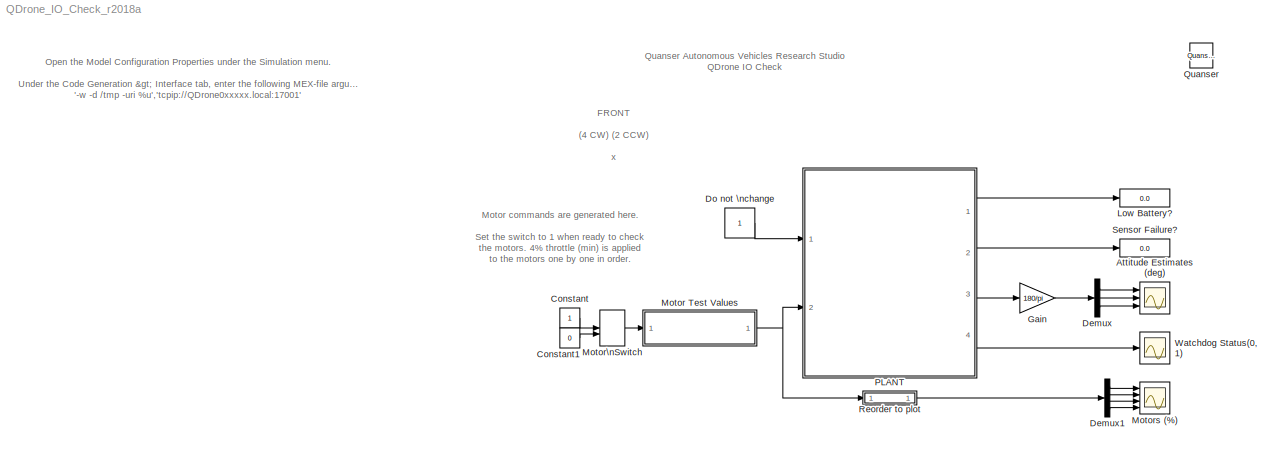
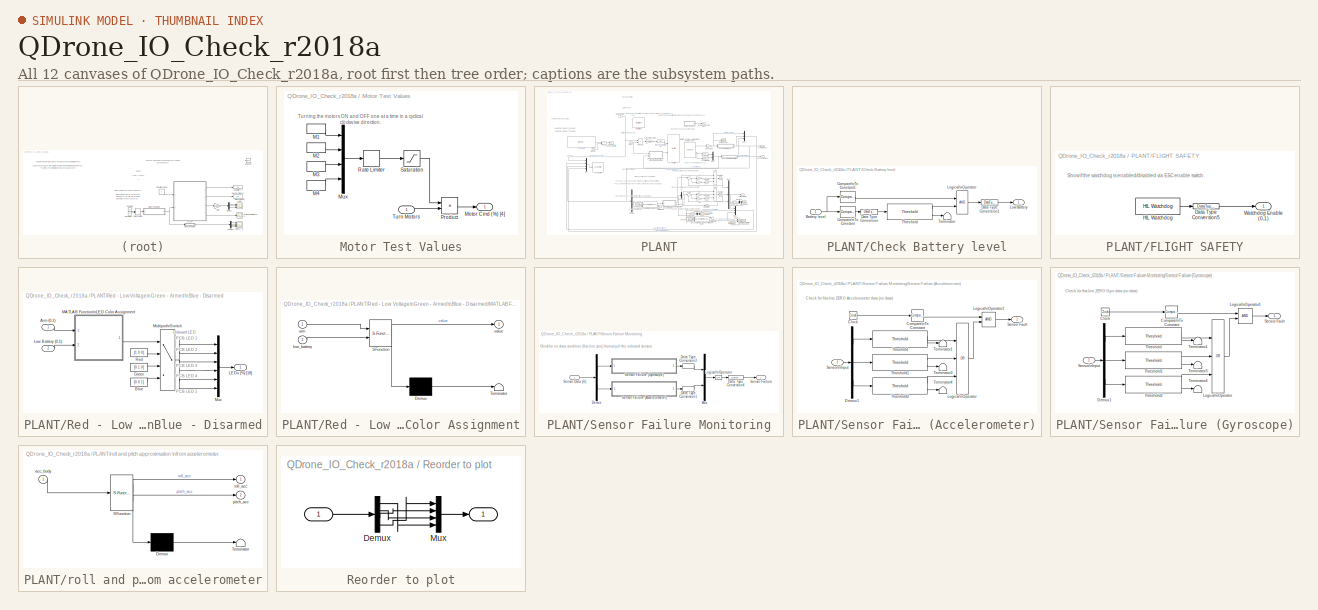
[diagram: thumbnail index - all 12 canvases of the model, root first then tree order]
MODEL QDrone_IO_Check_r2018a
KIND model
CONFIG InitFcn = set_param('QDrone_IO_Check/Motor Switch', 'sw', '0');
BLOCK [Scope] Attitude Estimates (deg)
  Floating = off
  NumInputPorts = 3
  Ports = [3]
  SID = 4941
  ScopeSpecificationString = Simulink.scopes.TimeScopeBlockCfg('CurrentConfiguration', extmgr.ConfigurationSet(extmgr.Configuration('Core','General UI',true),extmgr.Configuration('Core','Source UI',true),extmgr.Configuration('Sources','WiredSimulink',true,'DataLoggingVariableName','ScopeData1'),extmgr.Configuration('Visuals','Time Domain',true,'SerializedDisplays',{struct('MinYLimReal','-90','MaxYLimReal','90','YLabelReal','d...<+2711ch>
BLOCK [Constant] Constant
  SID = 4944
BLOCK [Constant] Constant1
  SID = 4945
  Value = 0
BLOCK [Demux] Demux
  Outputs = 3
  Ports = [1, 3]
  SID = 4960
BLOCK [Demux] Demux1
  Ports = [1, 4]
  SID = 4955
BLOCK [Constant] Do not \nchange
  SID = 4947
BLOCK [Gain] Gain
  Gain = 180/pi
  SID = 4942
BLOCK [Display] Low Battery?
  Decimation = 100
  Ports = [1]
  SID = 4916
BLOCK [SubSystem] Motor Test Values
  Ports = [1, 1]
  RequestExecContextInheritance = off
  SID = 4931
BLOCK [DiscretePulseGenerator] Motor Test Values/M1
  Amplitude = 0.04
  Period = 8
  Ports = [0, 1]
  PulseType = Time based
  PulseWidth = 12.5
  SID = 4932
BLOCK [DiscretePulseGenerator] Motor Test Values/M2
  Amplitude = 0.04
  Period = 8
  PhaseDelay = 6
  Ports = [0, 1]
  PulseType = Time based
  PulseWidth = 12.5
  SID = 4933
BLOCK [DiscretePulseGenerator] Motor Test Values/M3
  Amplitude = 0.04
  Period = 8
  PhaseDelay = 2
  Ports = [0, 1]
  PulseType = Time based
  PulseWidth = 12.5
  SID = 4934
BLOCK [DiscretePulseGenerator] Motor Test Values/M4
  Amplitude = 0.04
  Period = 8
  PhaseDelay = 4
  Ports = [0, 1]
  PulseType = Time based
  PulseWidth = 12.5
  SID = 4935
BLOCK [Outport] Motor Test Values/Motor Cmd (%) [4]
  SID = 4939
  VectorParamsAs1DForOutWhenUnconnected = off
BLOCK [Mux] Motor Test Values/Mux
  DisplayOption = bar
  Ports = [4, 1]
  SID = 4936
BLOCK [Product] Motor Test Values/Product
  Ports = [2, 1]
  SID = 4949
BLOCK [RateLimiter] Motor Test Values/Rate Limiter
  FallingSlewLimit = -0.1
  RisingSlewLimit = 0.1
  SID = 4937
  SampleTimeMode = inherited
BLOCK [Saturate] Motor Test Values/Saturation
  LowerLimit = 0
  SID = 4938
  UpperLimit = 0.1
BLOCK [Inport] Motor Test Values/Turn Motors
  SID = 4962
BLOCK [ManualSwitch] Motor\nSwitch
  CurrentSetting = 0
  SID = 6348
BLOCK [Scope] Motors (%)
  Floating = off
  NumInputPorts = 4
  Ports = [4]
  SID = 4950
  ScopeSpecificationString = Simulink.scopes.TimeScopeBlockCfg('CurrentConfiguration', extmgr.ConfigurationSet(extmgr.Configuration('Core','General UI',true),extmgr.Configuration('Core','Source UI',true),extmgr.Configuration('Sources','WiredSimulink',true,'DataLoggingVariableName','ScopeData2'),extmgr.Configuration('Visuals','Time Domain',true,'SerializedDisplays',{struct('MinYLimReal','-0.005','MaxYLimReal','0.045','YLabelRe...<+3475ch>
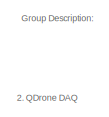
[diagram: PLANT - part 1/5, top center region]
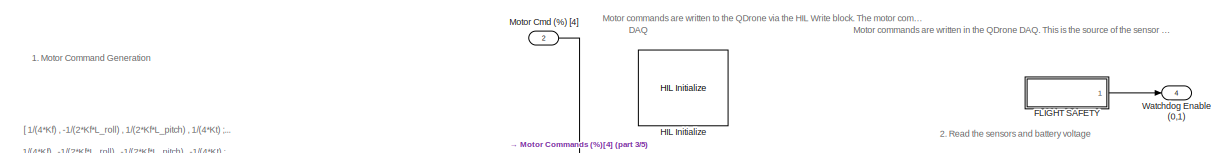
[diagram: PLANT - part 2/5, full width, top band]
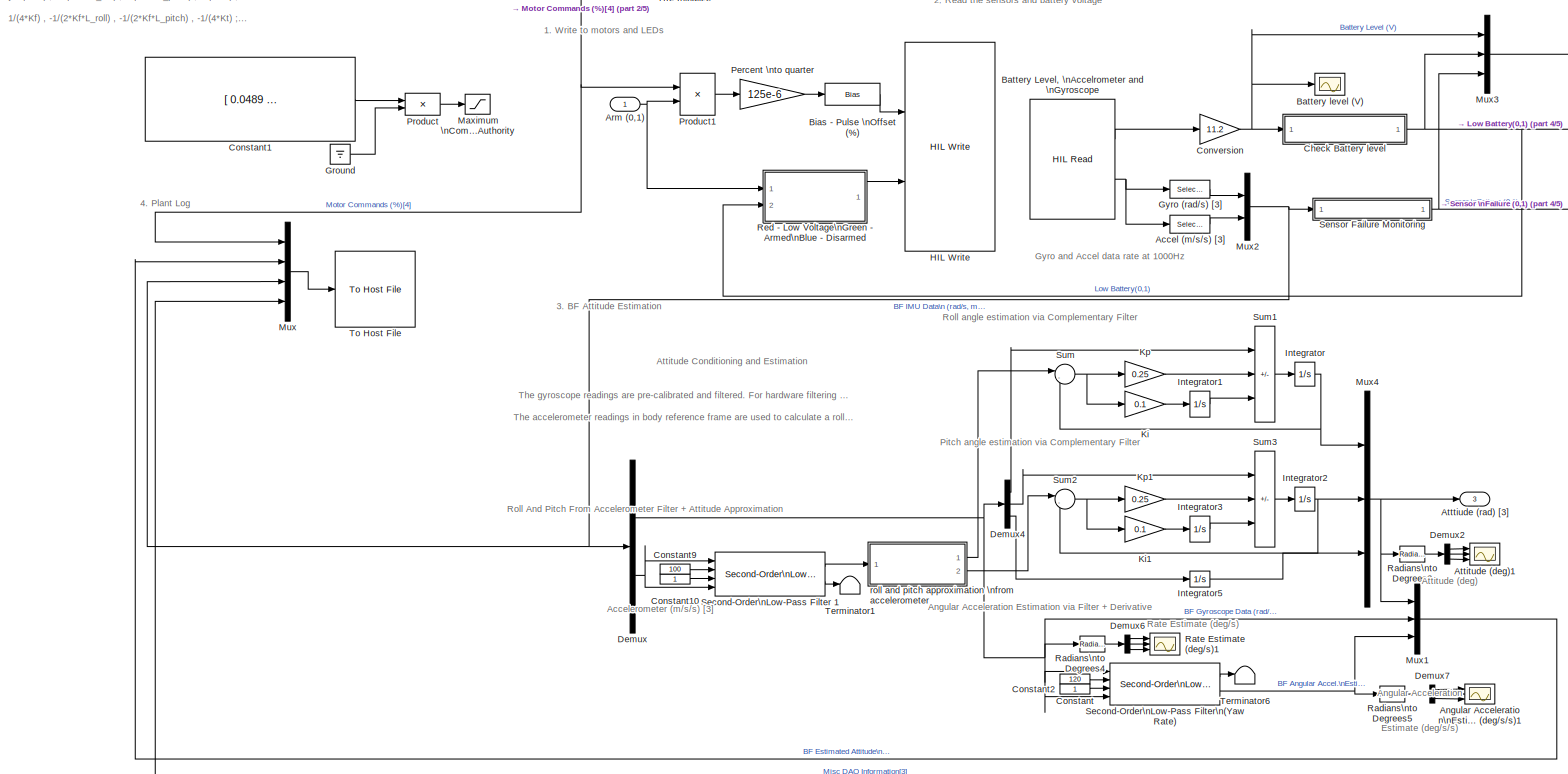
[diagram: PLANT - part 3/5, full width, middle band]
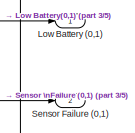
[diagram: PLANT - part 4/5, middle right region]
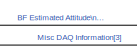
[diagram: PLANT - part 5/5, bottom center region]
BLOCK [SubSystem] PLANT
  Ports = [2, 4]
  RequestExecContextInheritance = off
  SID = 6350
BLOCK [Selector] PLANT/Accel (m//s//s) [3]
  IndexOptions = Index vector (dialog)
  Indices = [4:6]
  InputPortWidth = 6
  OutputSizes = 1
  Ports = [1, 1]
  SID = 6773
BLOCK [Scope] PLANT/Angular Acceleration\nEstimate (deg//s//s)1
  Floating = off
  NumInputPorts = 3
  Ports = [3]
  SID = 6774
  ScopeSpecificationString = Simulink.scopes.TimeScopeBlockCfg('CurrentConfiguration', extmgr.ConfigurationSet(extmgr.Configuration('Core','General UI',true),extmgr.Configuration('Core','Source UI',true),extmgr.Configuration('Sources','WiredSimulink',true,'DataLoggingVariableName','ScopeData1','DataLoggingLimitDataPoints',true,'DataLoggingSaveFormat','Array','DataLoggingDecimation','1','DataLoggingDecimateData',true),extmgr.C...<+2837ch>
BLOCK [Inport] PLANT/Arm (0,1)
  SID = 6352
BLOCK [Scope] PLANT/Attitude (deg)1
  Floating = off
  NumInputPorts = 3
  Ports = [3]
  SID = 6775
  ScopeSpecificationString = Simulink.scopes.TimeScopeBlockCfg('CurrentConfiguration', extmgr.ConfigurationSet(extmgr.Configuration('Core','General UI',true),extmgr.Configuration('Core','Source UI',true),extmgr.Configuration('Sources','WiredSimulink',true,'DataLoggingVariableName','ScopeData2','DataLoggingSaveFormat','Array','DataLoggingDecimation','1','DataLoggingDecimateData',true),extmgr.Configuration('Visuals','Time Domai...<+2849ch>
BLOCK [Outport] PLANT/Atttiude (rad) [3]
  Port = 3
  SID = 6628
  VectorParamsAs1DForOutWhenUnconnected = off
BLOCK [Reference] PLANT/Battery Level, \nAccelrometer and \nGyroscope  REF=quarc_library/Data Acquisition/Generic/Immediate I//O/HIL Read
  AttributesFormatString = (%<object_name>)
  MultiThreadCoSim = auto
  Ports = [0, 2]
  Priority = 1
  SID = 6776
  SourceBlock = quarc_library/Data Acquisition/Generic/Immediate I//O/HIL Read
  SourceProductName = The database <userpath><path> is locked, or a table in the database is locked. (database is locked)
  SourceType = HIL Read
  UserData = DataTag1
  UserDataPersistent = on
  active = on
  analog_channels = [4]
  data_type_mode = Inherit via back propagation
  digital_channels = []
  digital_data_type = boolean
  encoder_channels = []
  encoder_data_type = double
  object_name = HIL-1
  other_channels = [3000:3002 4000:4002]
  sample_time = qc_get_step_size
  vector_output = on
BLOCK [Scope] PLANT/Battery level  (V)
  Floating = off
  NumInputPorts = 1
  Ports = [1]
  SID = 6777
  ScopeSpecificationString = Simulink.scopes.TimeScopeBlockCfg('CurrentConfiguration', extmgr.ConfigurationSet(extmgr.Configuration('Core','General UI',true),extmgr.Configuration('Core','Source UI',true),extmgr.Configuration('Sources','WiredSimulink',true,'DataLoggingSaveFormat','Array','DataLoggingDecimation','1','DataLoggingDecimateData',true,'DataLoggingVariableName','ScopeData3'),extmgr.Configuration('Visuals','Time Domai...<+1584ch>
BLOCK [Bias] PLANT/Bias - Pulse \nOffset (%)
  Bias = 125e-6
  SID = 6778
  SaturateOnIntegerOverflow = off
BLOCK [SubSystem] PLANT/Check Battery level
  Ports = [1, 1]
  RequestExecContextInheritance = off
  SID = 6779
BLOCK [Inport] PLANT/Check Battery level/Battery level
  SID = 6780
BLOCK [Reference] PLANT/Check Battery level/Compare\nTo Constant  REF=simulink/Logic and Bit\nOperations/Compare\nTo Constant
  OutDataTypeStr = boolean
  Ports = [1, 1]
  RTWMemSecDataConstants = Inherit from model
  RTWMemSecDataInternal = Inherit from model
  RTWMemSecDataParameters = Inherit from model
  RTWMemSecFuncExecute = Inherit from model
  RTWMemSecFuncInitTerm = Inherit from model
  SID = 6781
  SourceBlock = simulink/Logic and Bit\nOperations/Compare\nTo Constant
  SourceProductBaseCode = SL
  SourceType = Compare To Constant
  ZeroCross = on
  const = 10.5
  relop = <=
BLOCK [Reference] PLANT/Check Battery level/Compare\nTo Constant1  REF=simulink/Logic and Bit\nOperations/Compare\nTo Constant
  OutDataTypeStr = boolean
  Ports = [1, 1]
  RTWMemSecDataConstants = Inherit from model
  RTWMemSecDataInternal = Inherit from model
  RTWMemSecDataParameters = Inherit from model
  RTWMemSecFuncExecute = Inherit from model
  RTWMemSecFuncInitTerm = Inherit from model
  SID = 6782
  SourceBlock = simulink/Logic and Bit\nOperations/Compare\nTo Constant
  SourceProductBaseCode = SL
  SourceType = Compare To Constant
  ZeroCross = on
  const = 0.5
  relop = >
BLOCK [DataTypeConversion] PLANT/Check Battery level/Data Type Conversion
  RndMeth = Floor
  SID = 6783
  SaturateOnIntegerOverflow = off
BLOCK [DataTypeConversion] PLANT/Check Battery level/Data Type Conversion1
  RndMeth = Floor
  SID = 6784
  SaturateOnIntegerOverflow = off
BLOCK [Logic] PLANT/Check Battery level/Logical\nOperator
  AllPortsSameDT = off
  OutDataTypeStr = boolean
  Ports = [2, 1]
  SID = 6785
BLOCK [Outport] PLANT/Check Battery level/Low Battery
  SID = 6788
  VectorParamsAs1DForOutWhenUnconnected = off
BLOCK [Terminator] PLANT/Check Battery level/Terminator
  SID = 6786
BLOCK [Reference] PLANT/Check Battery level/Threshold  REF=quarc_library/Discontinuities/Threshold
  Ports = [1, 2]
  RTWMemSecDataConstants = Inherit from model
  RTWMemSecDataInternal = Inherit from model
  RTWMemSecDataParameters = Inherit from model
  RTWMemSecFuncExecute = Inherit from model
  RTWMemSecFuncInitTerm = Inherit from model
  SID = 6787
  SourceBlock = quarc_library/Discontinuities/Threshold
  SourceProductName = The database <userpath><path> is locked, or a table in the database is locked. (database is locked)
  SourceType = Threshold
  duration = 0.1
  operator = >=
  param_src = Specify via dialog
  threshold = 0.5
BLOCK [Constant] PLANT/Constant
  SID = 6789
  Value = 120
BLOCK [Constant] PLANT/Constant1
  Commented = on
  SID = 6790
  Value = [ 0.0489   -0.4581    0.5566    5.1335;\n  0.0489   -0.4581   -0.5566   -5.1335;\n  0.0489    0.4581    0.5566   -5.1335;\n  0.0489    0.4581   -0.5566    5.1335]
BLOCK [Constant] PLANT/Constant10
  SID = 6791
BLOCK [Constant] PLANT/Constant2
  SID = 6792
BLOCK [Constant] PLANT/Constant9
  SID = 6793
  Value = 100
BLOCK [Gain] PLANT/Conversion
  Gain = 11.2
  SID = 6794
BLOCK [Demux] PLANT/Demux
  Outputs = [3 3]
  Ports = [1, 2]
  SID = 6795
BLOCK [Demux] PLANT/Demux2
  Outputs = 3
  Ports = [1, 3]
  SID = 6796
BLOCK [Demux] PLANT/Demux4
  Outputs = 3
  Ports = [1, 3]
  SID = 6797
BLOCK [Demux] PLANT/Demux6
  Outputs = 3
  Ports = [1, 3]
  SID = 6798
BLOCK [Demux] PLANT/Demux7
  Outputs = 3
  Ports = [1, 3]
  SID = 6799
BLOCK [SubSystem] PLANT/FLIGHT SAFETY
  Ports = [0, 1]
  RequestExecContextInheritance = off
  SID = 6736
BLOCK [DataTypeConversion] PLANT/FLIGHT SAFETY/Data Type Conversion5
  RndMeth = Floor
  SID = 6747
  SaturateOnIntegerOverflow = off
BLOCK [Reference] PLANT/FLIGHT SAFETY/HIL Watchdog  REF=quarc_library/Data Acquisition/Generic/Watchdog/HIL Watchdog
  AttributesFormatString = (%<object_name>)
  MultiThreadCoSim = auto
  Ports = [0, 1]
  SID = 6749
  SourceBlock = quarc_library/Data Acquisition/Generic/Watchdog/HIL Watchdog
  SourceProductName = QUARC Targets
  SourceType = HIL Watchdog
  UserData = DataTag2
  UserDataPersistent = on
  active = off
  object_name = HIL-1
  sample_time = qc_get_step_size
  timeout = 0.1
BLOCK [Outport] PLANT/FLIGHT SAFETY/Watchdog Enable (0,1)
  SID = 6769
  VectorParamsAs1DForOutWhenUnconnected = off
BLOCK [Ground] PLANT/Ground
  Commented = on
  SID = 6915
BLOCK [Selector] PLANT/Gyro (rad//s) [3]
  IndexOptions = Index vector (dialog)
  Indices = [1:3]
  InputPortWidth = 6
  OutputSizes = 1
  Ports = [1, 1]
  SID = 6800
BLOCK [Reference] PLANT/HIL Initialize  REF=quarc_library/Data Acquisition/Generic/Configuration/HIL Initialize
  AttributesFormatString = %<object_name> (%<board_type>-%<board_number>)
  MultiThreadCoSim = auto
  Ports = []
  SID = 6801
  SourceBlock = quarc_library/Data Acquisition/Generic/Configuration/HIL Initialize
  SourceProductName = The database <userpath><path> is locked, or a table in the database is locked. (database is locked)
  SourceType = HIL Initialize
  UserData = DataTag3
  UserDataPersistent = on
  active = on
  analog_input_channels = [0:4]
  analog_input_configurations = []
  analog_input_maximums = [3.3]
  analog_input_minimums = [0]
  analog_output_channels = []
  analog_output_maximums = []
  analog_output_minimums = []
  board_number = 0
  board_options = gyro_fs=2000;gyro_rate=1000;gyro_os=4;accel_fs=16;accel_rate=400;accel_os=4;baro_os=4096
  board_type = qdrone
  clock_modes = []
  digital_input_channels = []
  digital_output_channels = [5:7 9:23]
  digital_output_configuration = []
  encoder_channels = [0:2]
  encoder_filter_frequency = 50e6/1
  exclusive = off
  final_analog_outputs = []
  final_digital_outputs = [0]
  final_other_outputs = []
  final_pwm_outputs = [0]
  hardware_clocks = []
  initial_analog_outputs = []
  initial_clock_frequencies = []
  initial_digital_outputs = [0]
  initial_encoder_counts = [0]
  initial_other_outputs = []
  initial_pwm_outputs = [0]
  object_name = HIL-1
  other_output_channels = []
  pwm_alignment = [0]
  pwm_channels = [0:3]
  pwm_configuration = [0]
  pwm_frequency = 2000
  pwm_leading_deadband = []
  pwm_modes = [4]
  pwm_polarity = [1]
  pwm_trailing_deadband = []
  quadrature = [4]
  set_analog_input_params_at_start = off
  set_analog_input_params_at_switch_in = off
  set_analog_output_params_at_start = off
  set_analog_output_params_at_switch_in = off
  set_analog_outputs_at_start = off
  set_analog_outputs_at_switch_in = off
  set_analog_outputs_at_switch_out = off
  set_analog_outputs_at_terminate = off
  set_analog_outputs_on_watchdog = off
  set_clock_frequencies_at_start = off
  set_clock_frequencies_at_switch_in = off
  set_clock_params_at_start = off
  set_clock_params_at_switch_in = off
  set_digital_output_params_at_start = off
  set_digital_output_params_at_switch_in = off
  set_digital_outputs_at_start = on
  set_digital_outputs_at_switch_in = off
  set_digital_outputs_at_switch_out = off
  set_digital_outputs_at_terminate = on
  set_digital_outputs_on_watchdog = off
  set_encoder_counts_at_start = on
  set_encoder_counts_at_switch_in = off
  set_encoder_params_at_start = on
  set_encoder_params_at_switch_in = off
  set_other_outputs_at_start = off
  set_other_outputs_at_switch_in = off
  set_other_outputs_at_switch_out = off
  set_other_outputs_at_terminate = off
  set_other_outputs_on_watchdog = off
  set_pwm_outputs_at_start = on
  set_pwm_outputs_at_switch_in = off
  set_pwm_outputs_at_switch_out = off
  set_pwm_outputs_at_terminate = on
  set_pwm_outputs_on_watchdog = off
  set_pwm_params_at_start = on
  set_pwm_params_at_switch_in = off
  watchdog_analog_outputs = []
  watchdog_digital_outputs = []
  watchdog_other_outputs = []
  watchdog_pwm_outputs = [0]
BLOCK [Reference] PLANT/HIL Write  REF=quarc_library/Data Acquisition/Generic/Immediate I//O/HIL Write
  AttributesFormatString = (%<object_name>)
  MultiThreadCoSim = auto
  Ports = [2]
  SID = 6802
  SourceBlock = quarc_library/Data Acquisition/Generic/Immediate I//O/HIL Write
  SourceProductName = The database <userpath><path> is locked, or a table in the database is locked. (database is locked)
  SourceType = HIL Write
  UserData = DataTag4
  UserDataPersistent = on
  active = off
  analog_channels = []
  digital_channels = [5:7 9:23]
  object_name = HIL-1
  other_channels = []
  pwm_channels = [0:3]
  sample_time = -1
  vector_input = on
BLOCK [Integrator] PLANT/Integrator
  Ports = [1, 1]
  SID = 6803
BLOCK [Integrator] PLANT/Integrator1
  Ports = [1, 1]
  SID = 6804
BLOCK [Integrator] PLANT/Integrator2
  Ports = [1, 1]
  SID = 6805
BLOCK [Integrator] PLANT/Integrator3
  Ports = [1, 1]
  SID = 6806
BLOCK [Integrator] PLANT/Integrator5
  Ports = [1, 1]
  SID = 6807
BLOCK [Gain] PLANT/Ki
  Gain = 0.1
  SID = 6808
BLOCK [Gain] PLANT/Ki1
  Gain = 0.1
  SID = 6809
BLOCK [Gain] PLANT/Kp
  Gain = 0.25
  SID = 6810
BLOCK [Gain] PLANT/Kp1
  Gain = 0.25
  SID = 6811
BLOCK [Outport] PLANT/Low Battery (0,1)
  SID = 6626
  VectorParamsAs1DForOutWhenUnconnected = off
BLOCK [Saturate] PLANT/Maximum \nCommand\nAuthority 
  Commented = on
  LowerLimit = [0 0 0 0]
  SID = 6812
  UpperLimit = [1 1 1 1]
BLOCK [Inport] PLANT/Motor Cmd (%) [4]
  Port = 2
  SID = 6351
BLOCK [Mux] PLANT/Mux
  DisplayOption = bar
  Ports = [4, 1]
  SID = 6813
BLOCK [Mux] PLANT/Mux1
  DisplayOption = bar
  Inputs = 3
  Ports = [3, 1]
  SID = 6814
BLOCK [Mux] PLANT/Mux2
  DisplayOption = bar
  Inputs = 2
  Ports = [2, 1]
  SID = 6815
BLOCK [Mux] PLANT/Mux3
  DisplayOption = bar
  Inputs = 3
  Ports = [3, 1]
  SID = 6816
BLOCK [Mux] PLANT/Mux4
  DisplayOption = bar
  Inputs = 3
  Ports = [3, 1]
  SID = 6817
BLOCK [Gain] PLANT/Percent \nto quarter
  Gain = 125e-6
  SID = 6818
BLOCK [Product] PLANT/Product
  Commented = on
  Multiplication = Matrix(*)
  Ports = [2, 1]
  SID = 6819
BLOCK [Product] PLANT/Product1
  Ports = [2, 1]
  SID = 6820
BLOCK [Reference] PLANT/Radians\nto Degrees3  REF=simulink_extras/Transformations/Radians\nto Degrees
  Ports = [1, 1]
  RTWMemSecDataConstants = Inherit from model
  RTWMemSecDataInternal = Inherit from model
  RTWMemSecDataParameters = Inherit from model
  RTWMemSecFuncExecute = Inherit from model
  RTWMemSecFuncInitTerm = Inherit from model
  SID = 6821
  SourceBlock = simulink_extras/Transformations/Radians\nto Degrees
  SourceProductBaseCode = SL
  SourceType = RadiansToDegrees
BLOCK [Reference] PLANT/Radians\nto Degrees4  REF=simulink_extras/Transformations/Radians\nto Degrees
  Ports = [1, 1]
  RTWMemSecDataConstants = Inherit from model
  RTWMemSecDataInternal = Inherit from model
  RTWMemSecDataParameters = Inherit from model
  RTWMemSecFuncExecute = Inherit from model
  RTWMemSecFuncInitTerm = Inherit from model
  SID = 6822
  SourceBlock = simulink_extras/Transformations/Radians\nto Degrees
  SourceProductBaseCode = SL
  SourceType = RadiansToDegrees
BLOCK [Reference] PLANT/Radians\nto Degrees5  REF=simulink_extras/Transformations/Radians\nto Degrees
  Ports = [1, 1]
  RTWMemSecDataConstants = Inherit from model
  RTWMemSecDataInternal = Inherit from model
  RTWMemSecDataParameters = Inherit from model
  RTWMemSecFuncExecute = Inherit from model
  RTWMemSecFuncInitTerm = Inherit from model
  SID = 6823
  SourceBlock = simulink_extras/Transformations/Radians\nto Degrees
  SourceProductBaseCode = SL
  SourceType = RadiansToDegrees
BLOCK [Scope] PLANT/Rate Estimate (deg//s)1
  Floating = off
  NumInputPorts = 3
  Ports = [3]
  SID = 6824
  ScopeSpecificationString = Simulink.scopes.TimeScopeBlockCfg('CurrentConfiguration', extmgr.ConfigurationSet(extmgr.Configuration('Core','General UI',true),extmgr.Configuration('Core','Source UI',true),extmgr.Configuration('Sources','WiredSimulink',true,'DataLoggingVariableName','ScopeData4','DataLoggingLimitDataPoints',true,'DataLoggingSaveFormat','Array','DataLoggingDecimation','1','DataLoggingDecimateData',true),extmgr.C...<+2808ch>
BLOCK [SubSystem] PLANT/Red - Low Voltage\nGreen - Armed\nBlue - Disarmed
  Ports = [2, 1]
  RequestExecContextInheritance = off
  SID = 6825
BLOCK [Inport] PLANT/Red - Low Voltage\nGreen - Armed\nBlue - Disarmed/Arm (0,1)
  SID = 6826
BLOCK [Constant] PLANT/Red - Low Voltage\nGreen - Armed\nBlue - Disarmed/Blue
  SID = 6828
  Value = [0 0 1]
BLOCK [Constant] PLANT/Red - Low Voltage\nGreen - Armed\nBlue - Disarmed/Green
  SID = 6829
  Value = [0 1 0]
BLOCK [Outport] PLANT/Red - Low Voltage\nGreen - Armed\nBlue - Disarmed/LEDs (%) [18]
  SID = 6834
  VectorParamsAs1DForOutWhenUnconnected = off
BLOCK [Inport] PLANT/Red - Low Voltage\nGreen - Armed\nBlue - Disarmed/Low Battery (0,1)
  Port = 2
  SID = 6827
BLOCK [SubSystem] PLANT/Red - Low Voltage\nGreen - Armed\nBlue - Disarmed/MATLAB Function\nLED Color Assignment
  ErrorFcn = Stateflow.Translate.translate
  PermitHierarchicalResolution = ExplicitOnly
  Ports = [2, 1]
  RequestExecContextInheritance = off
  SFBlockType = MATLAB Function
  SID = 6830
  TreatAsAtomicUnit = on
BLOCK [Demux] PLANT/Red - Low Voltage\nGreen - Armed\nBlue - Disarmed/MATLAB Function\nLED Color Assignment/ Demux 
  Outputs = 1
  Ports = [1, 1]
  SID = 6830::109
BLOCK [S-Function] PLANT/Red - Low Voltage\nGreen - Armed\nBlue - Disarmed/MATLAB Function\nLED Color Assignment/ SFunction 
  EnableBusSupport = off
  FunctionName = sf_sfun
  PortCounts = [2 2]
  Ports = [2, 2]
  SFcnIsStateOwnerBlock = off
  SFunctionDeploymentMode = off
  SID = 6830::108
  Tag = Stateflow S-Function QDrone_IO_Check_r2018a 12
BLOCK [Terminator] PLANT/Red - Low Voltage\nGreen - Armed\nBlue - Disarmed/MATLAB Function\nLED Color Assignment/ Terminator 
  SID = 6830::110
BLOCK [Inport] PLANT/Red - Low Voltage\nGreen - Armed\nBlue - Disarmed/MATLAB Function\nLED Color Assignment/arm
  SID = 6830::1
BLOCK [Inport] PLANT/Red - Low Voltage\nGreen - Armed\nBlue - Disarmed/MATLAB Function\nLED Color Assignment/low_battery
  Port = 2
  SID = 6830::19
BLOCK [Outport] PLANT/Red - Low Voltage\nGreen - Armed\nBlue - Disarmed/MATLAB Function\nLED Color Assignment/value
  SID = 6830::5
  VectorParamsAs1DForOutWhenUnconnected = off
BLOCK [MultiPortSwitch] PLANT/Red - Low Voltage\nGreen - Armed\nBlue - Disarmed/Multiport\nSwitch
  InputSameDT = off
  Ports = [4, 1]
  SID = 6831
  SaturateOnIntegerOverflow = off
BLOCK [Mux] PLANT/Red - Low Voltage\nGreen - Armed\nBlue - Disarmed/Mux
  DisplayOption = bar
  Inputs = [3 3 3 3 3 3]
  Ports = [6, 1]
  SID = 6832
BLOCK [Constant] PLANT/Red - Low Voltage\nGreen - Armed\nBlue - Disarmed/Red
  SID = 6833
  Value = [1 0 0]
BLOCK [Reference] PLANT/Second-Order\nLow-Pass Filter 1  REF=quarc_library/Continuous/Second-Order\nLow-Pass Filter
  Ports = [4, 2]
  RTWMemSecDataConstants = Inherit from model
  RTWMemSecDataInternal = Inherit from model
  RTWMemSecDataParameters = Inherit from model
  RTWMemSecFuncExecute = Inherit from model
  RTWMemSecFuncInitTerm = Inherit from model
  SID = 6842
  SourceBlock = quarc_library/Continuous/Second-Order\nLow-Pass Filter
  SourceProductName = The database <userpath><path> is locked, or a table in the database is locked. (database is locked)
  SourceType = Second-Order Low-Pass Filter
  input_init = 0
  input_width = 50
  input_zeta = 1
  params_source = External (input ports)
BLOCK [Reference] PLANT/Second-Order\nLow-Pass Filter\n(Yaw Rate)  REF=quarc_library/Continuous/Second-Order\nLow-Pass Filter
  Ports = [4, 2]
  RTWMemSecDataConstants = Inherit from model
  RTWMemSecDataInternal = Inherit from model
  RTWMemSecDataParameters = Inherit from model
  RTWMemSecFuncExecute = Inherit from model
  RTWMemSecFuncInitTerm = Inherit from model
  SID = 6841
  SourceBlock = quarc_library/Continuous/Second-Order\nLow-Pass Filter
  SourceProductName = The database <userpath><path> is locked, or a table in the database is locked. (database is locked)
  SourceType = Second-Order Low-Pass Filter
  input_init = 0
  input_width = 200
  input_zeta = 1
  params_source = External (input ports)
BLOCK [Outport] PLANT/Sensor Failure (0,1)
  Port = 2
  SID = 6627
  VectorParamsAs1DForOutWhenUnconnected = off
BLOCK [SubSystem] PLANT/Sensor Failure Monitoring
  Ports = [1, 1]
  RequestExecContextInheritance = off
  SID = 6843
BLOCK [DataTypeConversion] PLANT/Sensor Failure Monitoring/Data Type Conversion1
  RndMeth = Floor
  SID = 6845
  SaturateOnIntegerOverflow = off
BLOCK [DataTypeConversion] PLANT/Sensor Failure Monitoring/Data Type Conversion2
  RndMeth = Floor
  SID = 6846
  SaturateOnIntegerOverflow = off
BLOCK [DataTypeConversion] PLANT/Sensor Failure Monitoring/Data Type Conversion4
  RndMeth = Floor
  SID = 6847
  SaturateOnIntegerOverflow = off
BLOCK [Demux] PLANT/Sensor Failure Monitoring/Demux
  Outputs = [3 3]
  Ports = [1, 2]
  SID = 6848
BLOCK [Logic] PLANT/Sensor Failure Monitoring/Logical\nOperator
  AllPortsSameDT = off
  Inputs = 1
  Operator = OR
  OutDataTypeStr = boolean
  Ports = [1, 1]
  SID = 6849
BLOCK [Mux] PLANT/Sensor Failure Monitoring/Mux
  DisplayOption = bar
  Inputs = 2
  Ports = [2, 1]
  SID = 6850
BLOCK [Inport] PLANT/Sensor Failure Monitoring/Sensor Data [6]
  SID = 6844
BLOCK [Outport] PLANT/Sensor Failure Monitoring/Sensor Failure
  SID = 6881
  VectorParamsAs1DForOutWhenUnconnected = off
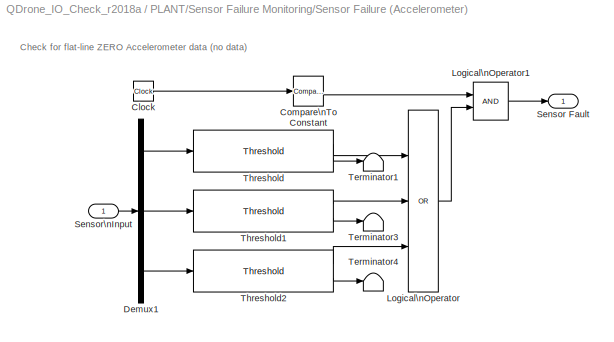
BLOCK [SubSystem] PLANT/Sensor Failure Monitoring/Sensor Failure (Accelerometer)
  Ports = [1, 1]
  RequestExecContextInheritance = off
  SID = 6851
BLOCK [Clock] PLANT/Sensor Failure Monitoring/Sensor Failure (Accelerometer)/Clock
  SID = 6853
BLOCK [Reference] PLANT/Sensor Failure Monitoring/Sensor Failure (Accelerometer)/Compare\nTo Constant  REF=simulink/Logic and Bit\nOperations/Compare\nTo Constant
  OutDataTypeStr = boolean
  Ports = [1, 1]
  RTWMemSecDataConstants = Inherit from model
  RTWMemSecDataInternal = Inherit from model
  RTWMemSecDataParameters = Inherit from model
  RTWMemSecFuncExecute = Inherit from model
  RTWMemSecFuncInitTerm = Inherit from model
  SID = 6854
  SourceBlock = simulink/Logic and Bit\nOperations/Compare\nTo Constant
  SourceProductBaseCode = SL
  SourceType = Compare To Constant
  ZeroCross = on
  const = 1
  relop = >=
BLOCK [Demux] PLANT/Sensor Failure Monitoring/Sensor Failure (Accelerometer)/Demux1
  Outputs = 3
  Ports = [1, 3]
  SID = 6855
BLOCK [Logic] PLANT/Sensor Failure Monitoring/Sensor Failure (Accelerometer)/Logical\nOperator
  AllPortsSameDT = off
  Inputs = 3
  Operator = OR
  OutDataTypeStr = boolean
  Ports = [3, 1]
  SID = 6856
BLOCK [Logic] PLANT/Sensor Failure Monitoring/Sensor Failure (Accelerometer)/Logical\nOperator1
  AllPortsSameDT = off
  OutDataTypeStr = boolean
  Ports = [2, 1]
  SID = 6857
BLOCK [Outport] PLANT/Sensor Failure Monitoring/Sensor Failure (Accelerometer)/Sensor Fault
  SID = 6864
  VectorParamsAs1DForOutWhenUnconnected = off
BLOCK [Inport] PLANT/Sensor Failure Monitoring/Sensor Failure (Accelerometer)/Sensor\nInput
  SID = 6852
BLOCK [Terminator] PLANT/Sensor Failure Monitoring/Sensor Failure (Accelerometer)/Terminator1
  SID = 6858
BLOCK [Terminator] PLANT/Sensor Failure Monitoring/Sensor Failure (Accelerometer)/Terminator3
  SID = 6859
BLOCK [Terminator] PLANT/Sensor Failure Monitoring/Sensor Failure (Accelerometer)/Terminator4
  SID = 6860
BLOCK [Reference] PLANT/Sensor Failure Monitoring/Sensor Failure (Accelerometer)/Threshold  REF=quarc_library/Discontinuities/Threshold
  Ports = [1, 2]
  RTWMemSecDataConstants = Inherit from model
  RTWMemSecDataInternal = Inherit from model
  RTWMemSecDataParameters = Inherit from model
  RTWMemSecFuncExecute = Inherit from model
  RTWMemSecFuncInitTerm = Inherit from model
  SID = 6861
  SourceBlock = quarc_library/Discontinuities/Threshold
  SourceProductName = The database <userpath><path> is locked, or a table in the database is locked. (database is locked)
  SourceType = Threshold
  duration = 1
  operator = ==
  param_src = Specify via dialog
  threshold = 0
BLOCK [Reference] PLANT/Sensor Failure Monitoring/Sensor Failure (Accelerometer)/Threshold1  REF=quarc_library/Discontinuities/Threshold
  Ports = [1, 2]
  RTWMemSecDataConstants = Inherit from model
  RTWMemSecDataInternal = Inherit from model
  RTWMemSecDataParameters = Inherit from model
  RTWMemSecFuncExecute = Inherit from model
  RTWMemSecFuncInitTerm = Inherit from model
  SID = 6862
  SourceBlock = quarc_library/Discontinuities/Threshold
  SourceProductName = The database <userpath><path> is locked, or a table in the database is locked. (database is locked)
  SourceType = Threshold
  duration = 1
  operator = ==
  param_src = Specify via dialog
  threshold = 0
BLOCK [Reference] PLANT/Sensor Failure Monitoring/Sensor Failure (Accelerometer)/Threshold2  REF=quarc_library/Discontinuities/Threshold
  Ports = [1, 2]
  RTWMemSecDataConstants = Inherit from model
  RTWMemSecDataInternal = Inherit from model
  RTWMemSecDataParameters = Inherit from model
  RTWMemSecFuncExecute = Inherit from model
  RTWMemSecFuncInitTerm = Inherit from model
  SID = 6863
  SourceBlock = quarc_library/Discontinuities/Threshold
  SourceProductName = The database <userpath><path> is locked, or a table in the database is locked. (database is locked)
  SourceType = Threshold
  duration = 1
  operator = ==
  param_src = Specify via dialog
  threshold = 0
BLOCK [SubSystem] PLANT/Sensor Failure Monitoring/Sensor Failure (Gyroscope)
  Ports = [1, 1]
  RequestExecContextInheritance = off
  SID = 6866
BLOCK [Clock] PLANT/Sensor Failure Monitoring/Sensor Failure (Gyroscope)/Clock
  SID = 6868
BLOCK [Reference] PLANT/Sensor Failure Monitoring/Sensor Failure (Gyroscope)/Compare\nTo Constant  REF=simulink/Logic and Bit\nOperations/Compare\nTo Constant
  OutDataTypeStr = boolean
  Ports = [1, 1]
  RTWMemSecDataConstants = Inherit from model
  RTWMemSecDataInternal = Inherit from model
  RTWMemSecDataParameters = Inherit from model
  RTWMemSecFuncExecute = Inherit from model
  RTWMemSecFuncInitTerm = Inherit from model
  SID = 6869
  SourceBlock = simulink/Logic and Bit\nOperations/Compare\nTo Constant
  SourceProductBaseCode = SL
  SourceType = Compare To Constant
  ZeroCross = on
  const = 1
  relop = >=
BLOCK [Demux] PLANT/Sensor Failure Monitoring/Sensor Failure (Gyroscope)/Demux1
  Outputs = 3
  Ports = [1, 3]
  SID = 6870
BLOCK [Logic] PLANT/Sensor Failure Monitoring/Sensor Failure (Gyroscope)/Logical\nOperator
  AllPortsSameDT = off
  Inputs = 3
  Operator = OR
  OutDataTypeStr = boolean
  Ports = [3, 1]
  SID = 6871
BLOCK [Logic] PLANT/Sensor Failure Monitoring/Sensor Failure (Gyroscope)/Logical\nOperator1
  AllPortsSameDT = off
  OutDataTypeStr = boolean
  Ports = [2, 1]
  SID = 6872
BLOCK [Outport] PLANT/Sensor Failure Monitoring/Sensor Failure (Gyroscope)/Sensor Fault
  SID = 6879
  VectorParamsAs1DForOutWhenUnconnected = off
BLOCK [Inport] PLANT/Sensor Failure Monitoring/Sensor Failure (Gyroscope)/Sensor\nInput
  SID = 6867
BLOCK [Terminator] PLANT/Sensor Failure Monitoring/Sensor Failure (Gyroscope)/Terminator1
  SID = 6873
BLOCK [Terminator] PLANT/Sensor Failure Monitoring/Sensor Failure (Gyroscope)/Terminator3
  SID = 6874
BLOCK [Terminator] PLANT/Sensor Failure Monitoring/Sensor Failure (Gyroscope)/Terminator4
  SID = 6875
BLOCK [Reference] PLANT/Sensor Failure Monitoring/Sensor Failure (Gyroscope)/Threshold  REF=quarc_library/Discontinuities/Threshold
  Ports = [1, 2]
  RTWMemSecDataConstants = Inherit from model
  RTWMemSecDataInternal = Inherit from model
  RTWMemSecDataParameters = Inherit from model
  RTWMemSecFuncExecute = Inherit from model
  RTWMemSecFuncInitTerm = Inherit from model
  SID = 6876
  SourceBlock = quarc_library/Discontinuities/Threshold
  SourceProductName = The database <userpath><path> is locked, or a table in the database is locked. (database is locked)
  SourceType = Threshold
  duration = 1
  operator = ==
  param_src = Specify via dialog
  threshold = 0
BLOCK [Reference] PLANT/Sensor Failure Monitoring/Sensor Failure (Gyroscope)/Threshold1  REF=quarc_library/Discontinuities/Threshold
  Ports = [1, 2]
  RTWMemSecDataConstants = Inherit from model
  RTWMemSecDataInternal = Inherit from model
  RTWMemSecDataParameters = Inherit from model
  RTWMemSecFuncExecute = Inherit from model
  RTWMemSecFuncInitTerm = Inherit from model
  SID = 6877
  SourceBlock = quarc_library/Discontinuities/Threshold
  SourceProductName = The database <userpath><path> is locked, or a table in the database is locked. (database is locked)
  SourceType = Threshold
  duration = 1
  operator = ==
  param_src = Specify via dialog
  threshold = 0
BLOCK [Reference] PLANT/Sensor Failure Monitoring/Sensor Failure (Gyroscope)/Threshold2  REF=quarc_library/Discontinuities/Threshold
  Ports = [1, 2]
  RTWMemSecDataConstants = Inherit from model
  RTWMemSecDataInternal = Inherit from model
  RTWMemSecDataParameters = Inherit from model
  RTWMemSecFuncExecute = Inherit from model
  RTWMemSecFuncInitTerm = Inherit from model
  SID = 6878
  SourceBlock = quarc_library/Discontinuities/Threshold
  SourceProductName = The database <userpath><path> is locked, or a table in the database is locked. (database is locked)
  SourceType = Threshold
  duration = 1
  operator = ==
  param_src = Specify via dialog
  threshold = 0
BLOCK [Sum] PLANT/Sum
  Inputs = |-+
  Ports = [2, 1]
  SID = 6883
BLOCK [Sum] PLANT/Sum1
  IconShape = rectangular
  Inputs = +--
  Ports = [3, 1]
  SID = 6884
BLOCK [Sum] PLANT/Sum2
  Inputs = |-+
  Ports = [2, 1]
  SID = 6885
BLOCK [Sum] PLANT/Sum3
  IconShape = rectangular
  Inputs = +--
  Ports = [3, 1]
  SID = 6886
BLOCK [Terminator] PLANT/Terminator1
  SID = 6887
BLOCK [Terminator] PLANT/Terminator6
  SID = 6888
BLOCK [Reference] PLANT/To Host File  REF=quarc_library/Sinks/To Host/To Host File
  AttributesFormatString = %<final_file_name>
  MultiThreadCoSim = auto
  Ports = [1]
  SID = 6889
  SourceBlock = quarc_library/Sinks/To Host/To Host File
  SourceProductName = The database <userpath><path> is locked, or a table in the database is locked. (database is locked)
  SourceType = To Host File
  append = off
  bitrate = 2000000
  decimation = 1
  file_format = MAT-file v.5
  file_name = saved_data/%m/QDrone_%{date}_%{time}.mat
  final_file_name = saved_data/QDrone_IO_Check_r2018a/QDrone_10-Jan-2022_11-39-35.mat
  options = No header or footer
  sample_time = -1
  variable_name = QDrone_data
BLOCK [Outport] PLANT/Watchdog Enable (0,1)
  Port = 4
  SID = 6770
  VectorParamsAs1DForOutWhenUnconnected = off
BLOCK [SubSystem] PLANT/roll and pitch approximation \nfrom accelerometer
  ErrorFcn = Stateflow.Translate.translate
  PermitHierarchicalResolution = ExplicitOnly
  Ports = [1, 2]
  RequestExecContextInheritance = off
  SFBlockType = MATLAB Function
  SID = 6890
  TreatAsAtomicUnit = on
BLOCK [Demux] PLANT/roll and pitch approximation \nfrom accelerometer/ Demux 
  Outputs = 1
  Ports = [1, 1]
  SID = 6890::3349
BLOCK [S-Function] PLANT/roll and pitch approximation \nfrom accelerometer/ SFunction 
  EnableBusSupport = off
  FunctionName = sf_sfun
  PortCounts = [1 3]
  Ports = [1, 3]
  SFcnIsStateOwnerBlock = off
  SFunctionDeploymentMode = off
  SID = 6890::3348
  Tag = Stateflow S-Function QDrone_IO_Check_r2018a 1
BLOCK [Terminator] PLANT/roll and pitch approximation \nfrom accelerometer/ Terminator 
  SID = 6890::3350
BLOCK [Inport] PLANT/roll and pitch approximation \nfrom accelerometer/acc_body
  SID = 6890::1
BLOCK [Outport] PLANT/roll and pitch approximation \nfrom accelerometer/pitch_acc
  Port = 2
  SID = 6890::6
  VectorParamsAs1DForOutWhenUnconnected = off
BLOCK [Outport] PLANT/roll and pitch approximation \nfrom accelerometer/roll_acc
  SID = 6890::5
  VectorParamsAs1DForOutWhenUnconnected = off
BLOCK [Reference] Quanser  REF=quarc_library/Logos/Quanser
  Ports = []
  RTWMemSecDataConstants = Inherit from model
  RTWMemSecDataInternal = Inherit from model
  RTWMemSecDataParameters = Inherit from model
  RTWMemSecFuncExecute = Inherit from model
  RTWMemSecFuncInitTerm = Inherit from model
  SID = 6345
  SourceBlock = quarc_library/Logos/Quanser
  SourceProductName = QUARC Targets
  SourceType = Powered by Quanser
BLOCK [SubSystem] Reorder to plot
  Ports = [1, 1]
  RequestExecContextInheritance = off
  SID = 4956
BLOCK [Inport] Reorder to plot/ 
  SID = 4959
BLOCK [Outport] Reorder to plot/  
  SID = 4958
  VectorParamsAs1DForOutWhenUnconnected = off
BLOCK [Demux] Reorder to plot/Demux
  Ports = [1, 4]
  SID = 4951
BLOCK [Mux] Reorder to plot/Mux
  DisplayOption = bar
  Ports = [4, 1]
  SID = 4954
BLOCK [Display] Sensor Failure?
  Decimation = 100
  Ports = [1]
  SID = 4974
BLOCK [Scope] Watchdog Status(0,1)
  Floating = off
  NumInputPorts = 1
  Ports = [1]
  SID = 6772
  ScopeSpecificationString = Simulink.scopes.TimeScopeBlockCfg('CurrentConfiguration', extmgr.ConfigurationSet(extmgr.Configuration('Core','General UI',true),extmgr.Configuration('Core','Source UI',true),extmgr.Configuration('Sources','WiredSimulink',true,'DataLoggingVariableName','ScopeData1'),extmgr.Configuration('Visuals','Time Domain',true),extmgr.Configuration('Tools','Plot Navigation',true),extmgr.Configuration('Tools',...<+58ch>
ANNOTATION (root): FRONT\n\n(4 CW) (2 CCW)\n\n x\n\n(3 CCW) (1 CW)
ANNOTATION (root): \n \n Open the Model Configuration Properties under the Simulation menu. \n Under the Code Generation > Interface tab, enter the following MEX-file arguments '-w -d /tmp -uri %u','tcpip:// QDrone0xxxxx .local:17001' where QDrone0xxxxx is the hostname of the QDrone found below the battery compartment plate. \n Place the QDrone in the workspace with a battery plugged in (QDrone ON). \n \n Ensure tha...<+1484ch>
ANNOTATION (root): \n \n Quanser Autonomous Vehicles Research Studio QDrone IO Check
ANNOTATION (root): Motor commands are generated here.\n\nSet the switch to 1 when ready to check\nthe motors. 4% throttle (min) is applied \nto the motors one by one in order.
ANNOTATION Motor Test Values: Turning the motors ON and OFF one at a time in a cyclical\nclockwise direction.
ANNOTATION PLANT: 1. Motor Command Generation
ANNOTATION PLANT: 1. Write to motors and LEDs
ANNOTATION PLANT: 2. QDrone DAQ
ANNOTATION PLANT: 2. Read the sensors and battery voltage
ANNOTATION PLANT: 3. BF Attitude Estimation
ANNOTATION PLANT: 4. Plant Log
ANNOTATION PLANT: \n \n Motor commands are written in the QDrone DAQ. This is the source of the sensor data as well. The Attitude and Height Estimator calculates estimates from sensor data, along with sensor calibration and conditioning.
ANNOTATION PLANT: \n \n Group Description: \n \n 1.Motor Command Generation: Converts generalized forces (N,Nm) from the stability controller into a set of normalized motor command percentages to be written as PWM inputs to the QDrone DAQ. \n 2. QDrone DAQ: Set of blocks used to configure the HIL target, which in this case is the QDrone. The write and read blocks are used to give you access to the instrumentation o...<+179ch>
ANNOTATION PLANT: \n \n Attitude Conditioning and Estimation
ANNOTATION PLANT: \n \n [ 1/(4*Kf) , -1/(2*Kf*L_roll) , 1/(2*Kf*L_pitch) , 1/(4*Kt) ;... \n 1/(4*Kf) , -1/(2*Kf*L_roll) , -1/(2*Kf*L_pitch) , -1/(4*Kt) ;... \n 1/(4*Kf) , 1/(2*Kf*L_roll) , 1/(2*Kf*L_pitch) , -1/(4*Kt) ;... \n 1/(4*Kf) , 1/(2*Kf*L_roll) , -1/(2*Kf*L_pitch) , 1/(4*Kt) ]; \n \n See Guides and Resources/Concepts/Drone Parametrization.pdf
ANNOTATION PLANT: \n \n DAQ
ANNOTATION PLANT: \n \n Motor commands are written to the QDrone via the HIL Write block. The motor command inputs are mapped for a Oneshot 125 protocol as follows: \n \n Percent Seconds Description \n 0% 125 us No Throttle \n 100% 250 us Max Throttle \n \n The input to the motors are written as time period (in seconds) of the PWM pulses (at 2kHz). \n \n LED colors can be set using a simple 3x1 ON (1) and OFF (0) v...<+17ch>
ANNOTATION PLANT: Accelerometer (m/s/s) [3]
ANNOTATION PLANT: Angular Acceleration Estimation via Filter + Derivative
ANNOTATION PLANT: Angular Acceleration\nEstimate (deg/s/s)
ANNOTATION PLANT: Attitude (deg)
ANNOTATION PLANT: Gyro and Accel data rate at 1000Hz
ANNOTATION PLANT: Pitch angle estimation via Complementary Filter
ANNOTATION PLANT: Rate Estimate (deg/s)
ANNOTATION PLANT: Roll And Pitch From Accelerometer Filter + Attitude Approximation
ANNOTATION PLANT: Roll angle estimation via Complementary Filter
ANNOTATION PLANT: The gyroscope readings are pre-calibrated and filtered. For hardware filtering settings, see the HIL Initialize block in DAQ. Gyroscope readings are very good estimates of the rotation rate of the system, and do not need further calibration/filtering. These readings are further differentiated to get angular acceleration estimates for use in the stabilization controllers.\n\nThe accelerometer readi...<+158ch>
ANNOTATION PLANT/FLIGHT SAFETY: Show if the watchdog is enabled/disabled via ESC enable switch.
ANNOTATION PLANT/Red - Low Voltage\nGreen - Armed\nBlue - Disarmed: Onboard LED
ANNOTATION PLANT/Red - Low Voltage\nGreen - Armed\nBlue - Disarmed: PCB LED 1
ANNOTATION PLANT/Red - Low Voltage\nGreen - Armed\nBlue - Disarmed: PCB LED 2
ANNOTATION PLANT/Red - Low Voltage\nGreen - Armed\nBlue - Disarmed: PCB LED 3
ANNOTATION PLANT/Red - Low Voltage\nGreen - Armed\nBlue - Disarmed: PCB LED 4
ANNOTATION PLANT/Red - Low Voltage\nGreen - Armed\nBlue - Disarmed: PCB LED 5
ANNOTATION PLANT/Sensor Failure Monitoring: Check for no data condition (flat-line zero) from any of the onboard sensors
ANNOTATION PLANT/Sensor Failure Monitoring/Sensor Failure (Accelerometer): Check for flat-line ZERO Accelerometer data (no data)
ANNOTATION PLANT/Sensor Failure Monitoring/Sensor Failure (Gyroscope): Check for flat-line ZERO Gyro data (no data)
LINE Constant1:1 -> Motor\nSwitch:2
LINE Constant:1 -> Motor\nSwitch:1
LINE Demux1:1 -> Motors (%):1
LINE Demux1:2 -> Motors (%):2
LINE Demux1:3 -> Motors (%):3
LINE Demux1:4 -> Motors (%):4
LINE Demux:1 -> Attitude Estimates (deg):1
LINE Demux:2 -> Attitude Estimates (deg):2
LINE Demux:3 -> Attitude Estimates (deg):3
LINE Do not \nchange:1 -> PLANT:1
LINE Gain:1 -> Demux:1
LINE Motor Test Values/M1:1 -> Motor Test Values/Mux:1
LINE Motor Test Values/M2:1 -> Motor Test Values/Mux:2
LINE Motor Test Values/M3:1 -> Motor Test Values/Mux:3
LINE Motor Test Values/M4:1 -> Motor Test Values/Mux:4
LINE Motor Test Values/Mux:1 -> Motor Test Values/Rate Limiter:1
LINE Motor Test Values/Product:1 -> Motor Test Values/Motor Cmd (%) [4]:1
LINE Motor Test Values/Rate Limiter:1 -> Motor Test Values/Saturation:1
LINE Motor Test Values/Saturation:1 -> Motor Test Values/Product:1
LINE Motor Test Values/Turn Motors:1 -> Motor Test Values/Product:2
NET Motor Test Values:1 -> PLANT:2, Reorder to plot:1
LINE Motor\nSwitch:1 -> Motor Test Values:1
LINE PLANT/Accel (m//s//s) [3]:1 -> PLANT/Mux2:2
NET PLANT/Arm (0,1):1 -> PLANT/Product1:2, PLANT/Red - Low Voltage\nGreen - Armed\nBlue - Disarmed:1
LINE PLANT/Battery Level, \nAccelrometer and \nGyroscope:1 -> PLANT/Conversion:1
NET PLANT/Battery Level, \nAccelrometer and \nGyroscope:2 -> PLANT/Accel (m//s//s) [3]:1, PLANT/Gyro (rad//s) [3]:1
LINE PLANT/Bias - Pulse \nOffset (%):1 -> PLANT/HIL Write:1
NET PLANT/Check Battery level/Battery level:1 -> PLANT/Check Battery level/Compare\nTo Constant1:1, PLANT/Check Battery level/Compare\nTo Constant:1
LINE PLANT/Check Battery level/Compare\nTo Constant1:1 -> PLANT/Check Battery level/Logical\nOperator:1
LINE PLANT/Check Battery level/Compare\nTo Constant:1 -> PLANT/Check Battery level/Data Type Conversion:1
LINE PLANT/Check Battery level/Data Type Conversion1:1 -> PLANT/Check Battery level/Low Battery:1
LINE PLANT/Check Battery level/Data Type Conversion:1 -> PLANT/Check Battery level/Threshold:1
LINE PLANT/Check Battery level/Logical\nOperator:1 -> PLANT/Check Battery level/Data Type Conversion1:1
LINE PLANT/Check Battery level/Threshold:1 -> PLANT/Check Battery level/Logical\nOperator:2
LINE PLANT/Check Battery level/Threshold:2 -> PLANT/Check Battery level/Terminator:1
NET PLANT/Check Battery level:1 -> PLANT/Low Battery (0,1):1, PLANT/Mux3:2, PLANT/Red - Low Voltage\nGreen - Armed\nBlue - Disarmed:2
LINE PLANT/Constant10:1 -> PLANT/Second-Order\nLow-Pass Filter 1:3
LINE PLANT/Constant1:1 -> PLANT/Product:1
LINE PLANT/Constant2:1 -> PLANT/Second-Order\nLow-Pass Filter\n(Yaw Rate):3
LINE PLANT/Constant9:1 -> PLANT/Second-Order\nLow-Pass Filter 1:2
LINE PLANT/Constant:1 -> PLANT/Second-Order\nLow-Pass Filter\n(Yaw Rate):2
NET PLANT/Conversion:1 -> PLANT/Battery level  (V):1, PLANT/Check Battery level:1, PLANT/Mux3:1
LINE PLANT/Demux2:1 -> PLANT/Attitude (deg)1:1
LINE PLANT/Demux2:2 -> PLANT/Attitude (deg)1:2
LINE PLANT/Demux2:3 -> PLANT/Attitude (deg)1:3
LINE PLANT/Demux4:1 -> PLANT/Sum1:1
LINE PLANT/Demux4:2 -> PLANT/Sum3:1
LINE PLANT/Demux4:3 -> PLANT/Integrator5:1
LINE PLANT/Demux6:1 -> PLANT/Rate Estimate (deg//s)1:1
LINE PLANT/Demux6:2 -> PLANT/Rate Estimate (deg//s)1:2
LINE PLANT/Demux6:3 -> PLANT/Rate Estimate (deg//s)1:3
LINE PLANT/Demux7:1 -> PLANT/Angular Acceleration\nEstimate (deg//s//s)1:1
LINE PLANT/Demux7:2 -> PLANT/Angular Acceleration\nEstimate (deg//s//s)1:2
LINE PLANT/Demux7:3 -> PLANT/Angular Acceleration\nEstimate (deg//s//s)1:3
NET PLANT/Demux:1 -> PLANT/Demux4:1, PLANT/Mux1:2, PLANT/Radians\nto Degrees4:1, PLANT/Second-Order\nLow-Pass Filter\n(Yaw Rate):1, PLANT/Second-Order\nLow-Pass Filter\n(Yaw Rate):4
NET PLANT/Demux:2 -> PLANT/Second-Order\nLow-Pass Filter 1:1, PLANT/Second-Order\nLow-Pass Filter 1:4
LINE PLANT/FLIGHT SAFETY/Data Type Conversion5:1 -> PLANT/FLIGHT SAFETY/Watchdog Enable (0,1):1
LINE PLANT/FLIGHT SAFETY/HIL Watchdog:1 -> PLANT/FLIGHT SAFETY/Data Type Conversion5:1
LINE PLANT/FLIGHT SAFETY:1 -> PLANT/Watchdog Enable (0,1):1
LINE PLANT/Ground:1 -> PLANT/Product:2
LINE PLANT/Gyro (rad//s) [3]:1 -> PLANT/Mux2:1
LINE PLANT/Integrator1:1 -> PLANT/Sum1:3
NET PLANT/Integrator2:1 -> PLANT/Mux4:2, PLANT/Sum2:2
LINE PLANT/Integrator3:1 -> PLANT/Sum3:3
LINE PLANT/Integrator5:1 -> PLANT/Mux4:3
NET PLANT/Integrator:1 -> PLANT/Mux4:1, PLANT/Sum:2
LINE PLANT/Ki1:1 -> PLANT/Integrator3:1
LINE PLANT/Ki:1 -> PLANT/Integrator1:1
LINE PLANT/Kp1:1 -> PLANT/Sum3:2
LINE PLANT/Kp:1 -> PLANT/Sum1:2
NET PLANT/Motor Cmd (%) [4]:1 -> PLANT/Mux:1, PLANT/Product1:1
LINE PLANT/Mux1:1 -> PLANT/Mux:2
NET PLANT/Mux2:1 -> PLANT/Demux:1, PLANT/Mux:3, PLANT/Sensor Failure Monitoring:1
LINE PLANT/Mux3:1 -> PLANT/Mux:4
NET PLANT/Mux4:1 -> PLANT/Atttiude (rad) [3]:1, PLANT/Mux1:1, PLANT/Radians\nto Degrees3:1
LINE PLANT/Mux:1 -> PLANT/To Host File:1
LINE PLANT/Percent \nto quarter:1 -> PLANT/Bias - Pulse \nOffset (%):1
LINE PLANT/Product1:1 -> PLANT/Percent \nto quarter:1
LINE PLANT/Product:1 -> PLANT/Maximum \nCommand\nAuthority :1
LINE PLANT/Radians\nto Degrees3:1 -> PLANT/Demux2:1
LINE PLANT/Radians\nto Degrees4:1 -> PLANT/Demux6:1
LINE PLANT/Radians\nto Degrees5:1 -> PLANT/Demux7:1
LINE PLANT/Red - Low Voltage\nGreen - Armed\nBlue - Disarmed/Arm (0,1):1 -> PLANT/Red - Low Voltage\nGreen - Armed\nBlue - Disarmed/MATLAB Function\nLED Color Assignment:1
LINE PLANT/Red - Low Voltage\nGreen - Armed\nBlue - Disarmed/Blue:1 -> PLANT/Red - Low Voltage\nGreen - Armed\nBlue - Disarmed/Multiport\nSwitch:4
LINE PLANT/Red - Low Voltage\nGreen - Armed\nBlue - Disarmed/Green:1 -> PLANT/Red - Low Voltage\nGreen - Armed\nBlue - Disarmed/Multiport\nSwitch:3
LINE PLANT/Red - Low Voltage\nGreen - Armed\nBlue - Disarmed/Low Battery (0,1):1 -> PLANT/Red - Low Voltage\nGreen - Armed\nBlue - Disarmed/MATLAB Function\nLED Color Assignment:2
LINE PLANT/Red - Low Voltage\nGreen - Armed\nBlue - Disarmed/MATLAB Function\nLED Color Assignment/ Demux :1 -> PLANT/Red - Low Voltage\nGreen - Armed\nBlue - Disarmed/MATLAB Function\nLED Color Assignment/ Terminator :1
LINE PLANT/Red - Low Voltage\nGreen - Armed\nBlue - Disarmed/MATLAB Function\nLED Color Assignment/ SFunction :1 -> PLANT/Red - Low Voltage\nGreen - Armed\nBlue - Disarmed/MATLAB Function\nLED Color Assignment/ Demux :1
LINE PLANT/Red - Low Voltage\nGreen - Armed\nBlue - Disarmed/MATLAB Function\nLED Color Assignment/ SFunction :2 -> PLANT/Red - Low Voltage\nGreen - Armed\nBlue - Disarmed/MATLAB Function\nLED Color Assignment/value:1
LINE PLANT/Red - Low Voltage\nGreen - Armed\nBlue - Disarmed/MATLAB Function\nLED Color Assignment/arm:1 -> PLANT/Red - Low Voltage\nGreen - Armed\nBlue - Disarmed/MATLAB Function\nLED Color Assignment/ SFunction :1
LINE PLANT/Red - Low Voltage\nGreen - Armed\nBlue - Disarmed/MATLAB Function\nLED Color Assignment/low_battery:1 -> PLANT/Red - Low Voltage\nGreen - Armed\nBlue - Disarmed/MATLAB Function\nLED Color Assignment/ SFunction :2
LINE PLANT/Red - Low Voltage\nGreen - Armed\nBlue - Disarmed/MATLAB Function\nLED Color Assignment:1 -> PLANT/Red - Low Voltage\nGreen - Armed\nBlue - Disarmed/Multiport\nSwitch:1
NET PLANT/Red - Low Voltage\nGreen - Armed\nBlue - Disarmed/Multiport\nSwitch:1 -> PLANT/Red - Low Voltage\nGreen - Armed\nBlue - Disarmed/Mux:1, PLANT/Red - Low Voltage\nGreen - Armed\nBlue - Disarmed/Mux:2, PLANT/Red - Low Voltage\nGreen - Armed\nBlue - Disarmed/Mux:3, PLANT/Red - Low Voltage\nGreen - Armed\nBlue - Disarmed/Mux:4, PLANT/Red - Low Voltage\nGreen - Armed\nBlue - Disarmed/Mux:5, PLANT/Red - Low Voltage\nGreen - Armed\nBlue - Disarmed/Mux:6
LINE PLANT/Red - Low Voltage\nGreen - Armed\nBlue - Disarmed/Mux:1 -> PLANT/Red - Low Voltage\nGreen - Armed\nBlue - Disarmed/LEDs (%) [18]:1
LINE PLANT/Red - Low Voltage\nGreen - Armed\nBlue - Disarmed/Red:1 -> PLANT/Red - Low Voltage\nGreen - Armed\nBlue - Disarmed/Multiport\nSwitch:2
LINE PLANT/Red - Low Voltage\nGreen - Armed\nBlue - Disarmed:1 -> PLANT/HIL Write:2
LINE PLANT/Second-Order\nLow-Pass Filter 1:1 -> PLANT/roll and pitch approximation \nfrom accelerometer:1
LINE PLANT/Second-Order\nLow-Pass Filter 1:2 -> PLANT/Terminator1:1
LINE PLANT/Second-Order\nLow-Pass Filter\n(Yaw Rate):1 -> PLANT/Terminator6:1
NET PLANT/Second-Order\nLow-Pass Filter\n(Yaw Rate):2 -> PLANT/Mux1:3, PLANT/Radians\nto Degrees5:1
LINE PLANT/Sensor Failure Monitoring/Data Type Conversion1:1 -> PLANT/Sensor Failure Monitoring/Mux:2
LINE PLANT/Sensor Failure Monitoring/Data Type Conversion2:1 -> PLANT/Sensor Failure Monitoring/Mux:1
LINE PLANT/Sensor Failure Monitoring/Data Type Conversion4:1 -> PLANT/Sensor Failure Monitoring/Sensor Failure:1
LINE PLANT/Sensor Failure Monitoring/Demux:1 -> PLANT/Sensor Failure Monitoring/Sensor Failure (Gyroscope):1
LINE PLANT/Sensor Failure Monitoring/Demux:2 -> PLANT/Sensor Failure Monitoring/Sensor Failure (Accelerometer):1
LINE PLANT/Sensor Failure Monitoring/Logical\nOperator:1 -> PLANT/Sensor Failure Monitoring/Data Type Conversion4:1
LINE PLANT/Sensor Failure Monitoring/Mux:1 -> PLANT/Sensor Failure Monitoring/Logical\nOperator:1
LINE PLANT/Sensor Failure Monitoring/Sensor Data [6]:1 -> PLANT/Sensor Failure Monitoring/Demux:1
LINE PLANT/Sensor Failure Monitoring/Sensor Failure (Accelerometer)/Clock:1 -> PLANT/Sensor Failure Monitoring/Sensor Failure (Accelerometer)/Compare\nTo Constant:1
LINE PLANT/Sensor Failure Monitoring/Sensor Failure (Accelerometer)/Compare\nTo Constant:1 -> PLANT/Sensor Failure Monitoring/Sensor Failure (Accelerometer)/Logical\nOperator1:1
LINE PLANT/Sensor Failure Monitoring/Sensor Failure (Accelerometer)/Demux1:1 -> PLANT/Sensor Failure Monitoring/Sensor Failure (Accelerometer)/Threshold:1
LINE PLANT/Sensor Failure Monitoring/Sensor Failure (Accelerometer)/Demux1:2 -> PLANT/Sensor Failure Monitoring/Sensor Failure (Accelerometer)/Threshold1:1
LINE PLANT/Sensor Failure Monitoring/Sensor Failure (Accelerometer)/Demux1:3 -> PLANT/Sensor Failure Monitoring/Sensor Failure (Accelerometer)/Threshold2:1
LINE PLANT/Sensor Failure Monitoring/Sensor Failure (Accelerometer)/Logical\nOperator1:1 -> PLANT/Sensor Failure Monitoring/Sensor Failure (Accelerometer)/Sensor Fault:1
LINE PLANT/Sensor Failure Monitoring/Sensor Failure (Accelerometer)/Logical\nOperator:1 -> PLANT/Sensor Failure Monitoring/Sensor Failure (Accelerometer)/Logical\nOperator1:2
LINE PLANT/Sensor Failure Monitoring/Sensor Failure (Accelerometer)/Sensor\nInput:1 -> PLANT/Sensor Failure Monitoring/Sensor Failure (Accelerometer)/Demux1:1
LINE PLANT/Sensor Failure Monitoring/Sensor Failure (Accelerometer)/Threshold1:1 -> PLANT/Sensor Failure Monitoring/Sensor Failure (Accelerometer)/Logical\nOperator:2
LINE PLANT/Sensor Failure Monitoring/Sensor Failure (Accelerometer)/Threshold1:2 -> PLANT/Sensor Failure Monitoring/Sensor Failure (Accelerometer)/Terminator3:1
LINE PLANT/Sensor Failure Monitoring/Sensor Failure (Accelerometer)/Threshold2:1 -> PLANT/Sensor Failure Monitoring/Sensor Failure (Accelerometer)/Logical\nOperator:3
LINE PLANT/Sensor Failure Monitoring/Sensor Failure (Accelerometer)/Threshold2:2 -> PLANT/Sensor Failure Monitoring/Sensor Failure (Accelerometer)/Terminator4:1
LINE PLANT/Sensor Failure Monitoring/Sensor Failure (Accelerometer)/Threshold:1 -> PLANT/Sensor Failure Monitoring/Sensor Failure (Accelerometer)/Logical\nOperator:1
LINE PLANT/Sensor Failure Monitoring/Sensor Failure (Accelerometer)/Threshold:2 -> PLANT/Sensor Failure Monitoring/Sensor Failure (Accelerometer)/Terminator1:1
LINE PLANT/Sensor Failure Monitoring/Sensor Failure (Accelerometer):1 -> PLANT/Sensor Failure Monitoring/Data Type Conversion1:1
LINE PLANT/Sensor Failure Monitoring/Sensor Failure (Gyroscope)/Clock:1 -> PLANT/Sensor Failure Monitoring/Sensor Failure (Gyroscope)/Compare\nTo Constant:1
LINE PLANT/Sensor Failure Monitoring/Sensor Failure (Gyroscope)/Compare\nTo Constant:1 -> PLANT/Sensor Failure Monitoring/Sensor Failure (Gyroscope)/Logical\nOperator1:1
LINE PLANT/Sensor Failure Monitoring/Sensor Failure (Gyroscope)/Demux1:1 -> PLANT/Sensor Failure Monitoring/Sensor Failure (Gyroscope)/Threshold:1
LINE PLANT/Sensor Failure Monitoring/Sensor Failure (Gyroscope)/Demux1:2 -> PLANT/Sensor Failure Monitoring/Sensor Failure (Gyroscope)/Threshold1:1
LINE PLANT/Sensor Failure Monitoring/Sensor Failure (Gyroscope)/Demux1:3 -> PLANT/Sensor Failure Monitoring/Sensor Failure (Gyroscope)/Threshold2:1
LINE PLANT/Sensor Failure Monitoring/Sensor Failure (Gyroscope)/Logical\nOperator1:1 -> PLANT/Sensor Failure Monitoring/Sensor Failure (Gyroscope)/Sensor Fault:1
LINE PLANT/Sensor Failure Monitoring/Sensor Failure (Gyroscope)/Logical\nOperator:1 -> PLANT/Sensor Failure Monitoring/Sensor Failure (Gyroscope)/Logical\nOperator1:2
LINE PLANT/Sensor Failure Monitoring/Sensor Failure (Gyroscope)/Sensor\nInput:1 -> PLANT/Sensor Failure Monitoring/Sensor Failure (Gyroscope)/Demux1:1
LINE PLANT/Sensor Failure Monitoring/Sensor Failure (Gyroscope)/Threshold1:1 -> PLANT/Sensor Failure Monitoring/Sensor Failure (Gyroscope)/Logical\nOperator:2
LINE PLANT/Sensor Failure Monitoring/Sensor Failure (Gyroscope)/Threshold1:2 -> PLANT/Sensor Failure Monitoring/Sensor Failure (Gyroscope)/Terminator3:1
LINE PLANT/Sensor Failure Monitoring/Sensor Failure (Gyroscope)/Threshold2:1 -> PLANT/Sensor Failure Monitoring/Sensor Failure (Gyroscope)/Logical\nOperator:3
LINE PLANT/Sensor Failure Monitoring/Sensor Failure (Gyroscope)/Threshold2:2 -> PLANT/Sensor Failure Monitoring/Sensor Failure (Gyroscope)/Terminator4:1
LINE PLANT/Sensor Failure Monitoring/Sensor Failure (Gyroscope)/Threshold:1 -> PLANT/Sensor Failure Monitoring/Sensor Failure (Gyroscope)/Logical\nOperator:1
LINE PLANT/Sensor Failure Monitoring/Sensor Failure (Gyroscope)/Threshold:2 -> PLANT/Sensor Failure Monitoring/Sensor Failure (Gyroscope)/Terminator1:1
LINE PLANT/Sensor Failure Monitoring/Sensor Failure (Gyroscope):1 -> PLANT/Sensor Failure Monitoring/Data Type Conversion2:1
NET PLANT/Sensor Failure Monitoring:1 -> PLANT/Mux3:3, PLANT/Sensor Failure (0,1):1
LINE PLANT/Sum1:1 -> PLANT/Integrator:1
NET PLANT/Sum2:1 -> PLANT/Ki1:1, PLANT/Kp1:1
LINE PLANT/Sum3:1 -> PLANT/Integrator2:1
NET PLANT/Sum:1 -> PLANT/Ki:1, PLANT/Kp:1
LINE PLANT/roll and pitch approximation \nfrom accelerometer/ Demux :1 -> PLANT/roll and pitch approximation \nfrom accelerometer/ Terminator :1
LINE PLANT/roll and pitch approximation \nfrom accelerometer/ SFunction :1 -> PLANT/roll and pitch approximation \nfrom accelerometer/ Demux :1
LINE PLANT/roll and pitch approximation \nfrom accelerometer/ SFunction :2 -> PLANT/roll and pitch approximation \nfrom accelerometer/roll_acc:1
LINE PLANT/roll and pitch approximation \nfrom accelerometer/ SFunction :3 -> PLANT/roll and pitch approximation \nfrom accelerometer/pitch_acc:1
LINE PLANT/roll and pitch approximation \nfrom accelerometer/acc_body:1 -> PLANT/roll and pitch approximation \nfrom accelerometer/ SFunction :1
LINE PLANT/roll and pitch approximation \nfrom accelerometer:1 -> PLANT/Sum:1
LINE PLANT/roll and pitch approximation \nfrom accelerometer:2 -> PLANT/Sum2:1
LINE PLANT:1 -> Low Battery?:1
LINE PLANT:2 -> Sensor Failure?:1
LINE PLANT:3 -> Gain:1
LINE PLANT:4 -> Watchdog Status(0,1):1
LINE Reorder to plot/ :1 -> Reorder to plot/Demux:1
LINE Reorder to plot/Demux:1 -> Reorder to plot/Mux:4
LINE Reorder to plot/Demux:2 -> Reorder to plot/Mux:3
LINE Reorder to plot/Demux:3 -> Reorder to plot/Mux:2
LINE Reorder to plot/Demux:4 -> Reorder to plot/Mux:1
LINE Reorder to plot/Mux:1 -> Reorder to plot/  :1
LINE Reorder to plot:1 -> Demux1:1
note: NET lines group one-source signal fan-out (src -> all destinations, sorted); 1:1 wires keep LINE
CHART PLANT/roll and pitch approximation \nfrom accelerometer states=1 transitions=1
  STATE_LABEL 'eML_blk_kernel()'
CHART PLANT/Red - Low Voltage\nGreen - Armed\nBlue - Disarmed/MATLAB Function\nLED Color Assignment states=1 transitions=1
  STATE_LABEL 'eML_blk_kernel()'
note: 13 file-system paths scrubbed to <path> (not preserved elsewhere — flat text is the only slx artifact)
